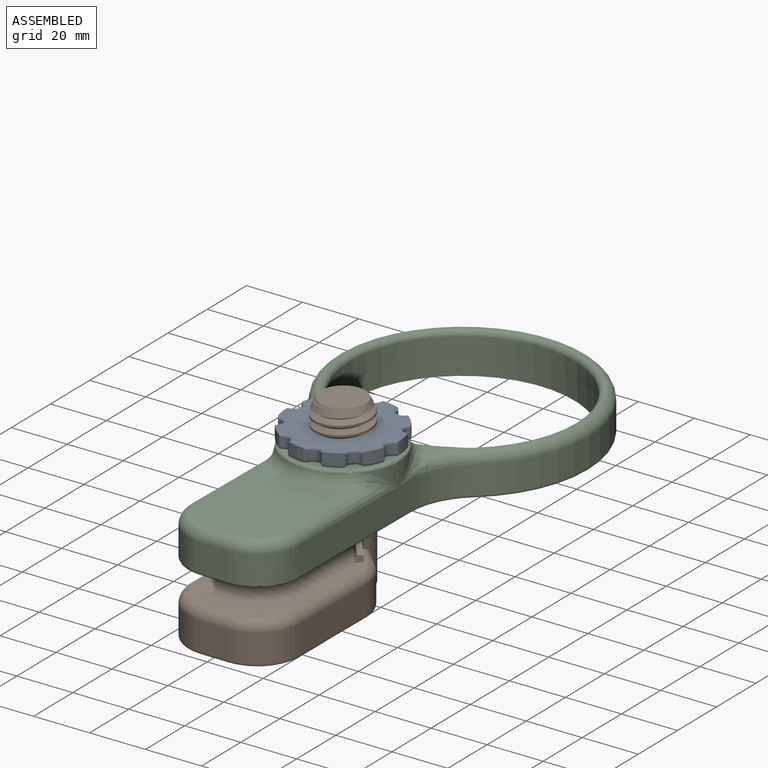
[diagram: assembled view]
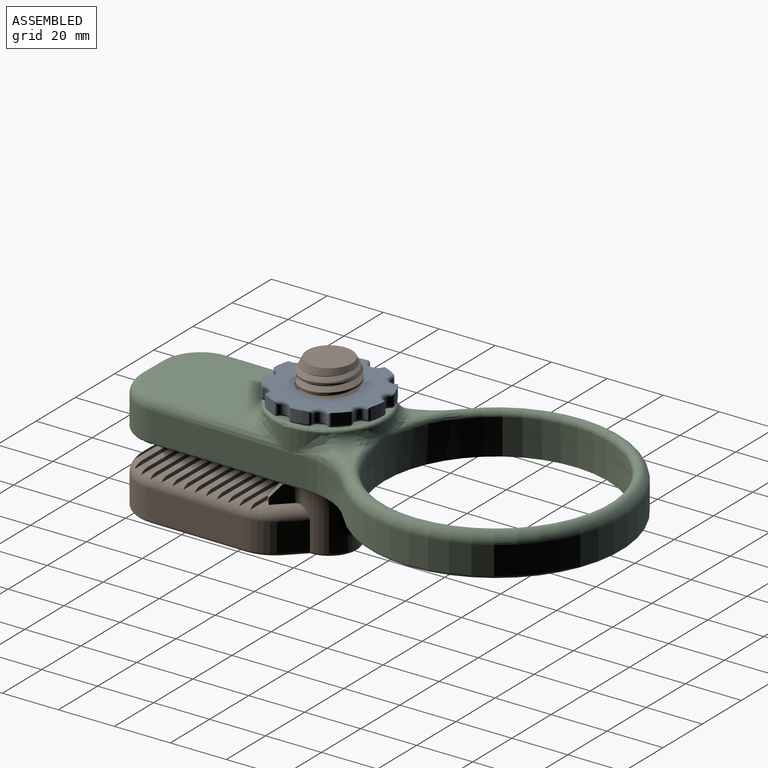
[diagram: assembled view, second angle]
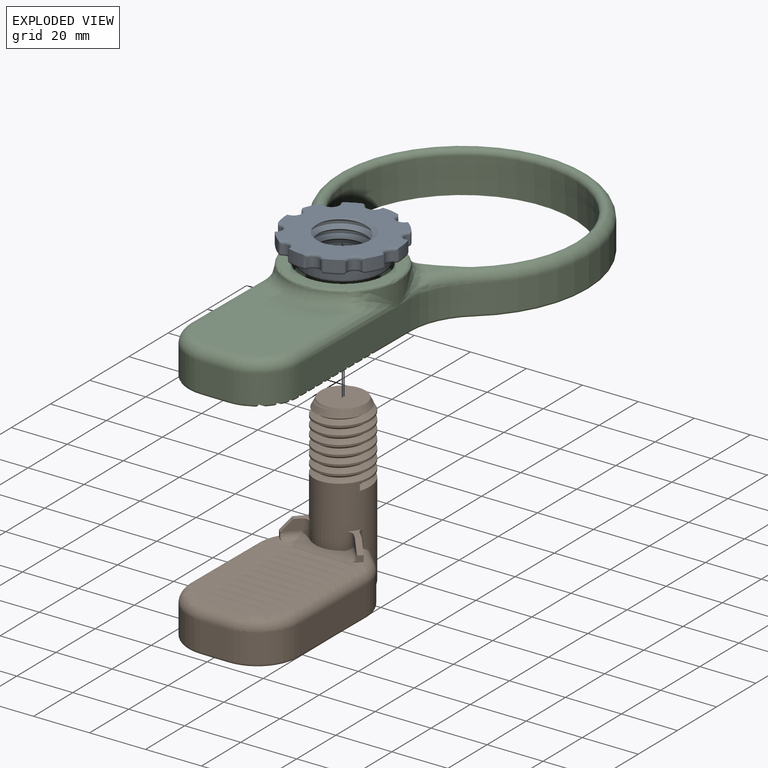
[diagram: exploded view]
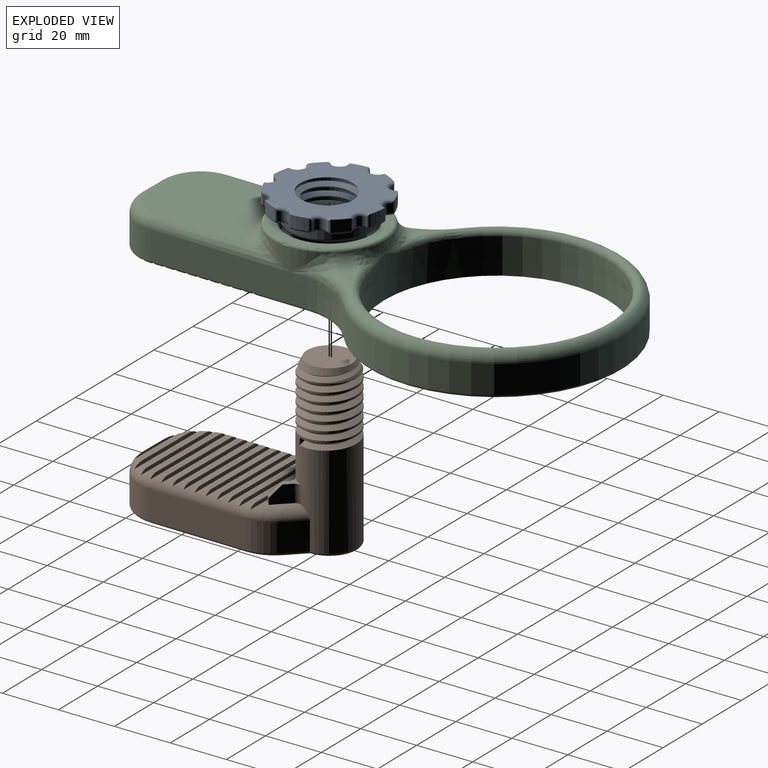
[diagram: exploded view, second angle]
ASSEMBLY  parts=3 mates=2
PART A: 99 faces, bbox 41.4x40.9x13.6 mm
  f0: bspline ~23.67x20.5mm, area 369.5mm2, adj f1,f3,f6,f27
  f1: bspline ~23.67x20.5mm, area 348.6mm2, adj f0,f2,f3,f6
  f2: plane 1.6x1.1mm, normal (0,1,0), area 0.9mm2, adj f1,f3,f27
  f3: cylinder r=10.25mm len=20.5mm, axis (0,0,-1), area 201.4mm2, adj f0,f1,f2,f6,f27
  f4: cylinder r=20mm len=4.76mm, axis (0,0,-1), area 23.6mm2, adj f6,f8,f88,f90,f97,f98
  f5: cylinder r=20mm len=5.58mm, axis (0,0,-1), area 23.6mm2, adj f6,f7,f34,f35,f95,f97
  f6: plane 40.98x40.39mm, normal (0,0,-1), area 792.8mm2, adj f0,f1,f3,f4,f5,f9,f11,f13
  f7: torus R=19mm, axis (0,0,1), area 9.1mm2, adj f5,f25,f33,f93
  f8: torus R=19mm, axis (0,0,1), area 9.1mm2, adj f4,f25,f86,f96
  f9: cylinder r=20mm len=5.87mm, axis (0,0,-1), area 23.6mm2, adj f6,f10,f81,f83,f90,f91
  f10: torus R=19mm, axis (0,0,1), area 9.1mm2, adj f9,f25,f79,f89
  f11: cylinder r=20mm len=4.74mm, axis (0,0,-1), area 23.6mm2, adj f6,f12,f74,f76,f83,f84
  f12: torus R=19mm, axis (0,0,1), area 9.1mm2, adj f11,f25,f72,f82
  f13: cylinder r=20mm len=5.59mm, axis (0,0,-1), area 23.6mm2, adj f6,f14,f67,f69,f76,f77
  f14: torus R=19mm, axis (0,0,1), area 9.1mm2, adj f13,f25,f65,f75
  f15: cylinder r=20mm len=5.58mm, axis (0,0,-1), area 23.6mm2, adj f6,f16,f60,f62,f69,f70
  f16: torus R=19mm, axis (0,0,1), area 9.1mm2, adj f15,f25,f58,f68
  f17: cylinder r=20mm len=4.76mm, axis (0,0,-1), area 23.6mm2, adj f6,f18,f53,f55,f62,f63
  f18: torus R=19mm, axis (0,0,1), area 9.1mm2, adj f17,f25,f51,f61
  f19: cylinder r=20mm len=5.87mm, axis (0,0,-1), area 23.6mm2, adj f6,f20,f46,f48,f55,f56
  f20: torus R=19mm, axis (0,0,1), area 9.1mm2, adj f19,f25,f44,f54
  f21: cylinder r=20mm len=4.74mm, axis (0,0,-1), area 23.6mm2, adj f6,f22,f39,f41,f48,f49
  f22: torus R=19mm, axis (0,0,1), area 9.1mm2, adj f21,f25,f37,f47
  f23: cylinder r=20mm len=5.59mm, axis (0,0,-1), area 23.6mm2, adj f6,f24,f32,f34,f41,f42
  f24: torus R=19mm, axis (0,0,1), area 9.1mm2, adj f23,f25,f30,f40
  f25: plane 38x37.49mm, normal (0,0,1), area 372.4mm2, adj f7,f8,f10,f12,f14,f16,f18,f20
  f26: cylinder r=14.5mm len=29mm, axis (0,0,-1), area 364.4mm2, adj f25,f28
  f27: plane 27.95x27.95mm, normal (0,0,1), area 259.7mm2, adj f0,f2,f3,f28
  f28: torus R=13.5mm, axis (0,0,1), area 139.5mm2, adj f26,f27
  f29: cylinder r=2.5mm len=4.51mm, axis (0,0,-1), area 16.9mm2, adj f31,f32,f34,f35
  f30: sphere r=1mm, area 1.9mm2, adj f24,f31,f32
  f31: torus R=3.5mm, axis (0,0,1), area 10.1mm2, adj f25,f29,f30,f33
  f32: cylinder r=1mm len=3.99mm, axis (0,0,-1), area 4.5mm2, adj f23,f29,f30,f34
  f33: sphere r=1mm, area 0.8mm2, adj f7,f31,f35
  f34: torus R=3.5mm, axis (0,0,1), area 12mm2, adj f5,f6,f23,f29,f32,f35
  f35: cylinder r=1mm len=3.99mm, axis (0,0,1), area 4.5mm2, adj f5,f29,f33,f34
  f36: cylinder r=2.5mm len=3.7mm, axis (0,0,-1), area 16.9mm2, adj f38,f39,f41,f42
  f37: sphere r=1mm, area 0.8mm2, adj f22,f38,f39
  f38: torus R=3.5mm, axis (0,0,1), area 10.1mm2, adj f25,f36,f37,f40
  f39: cylinder r=1mm len=3.99mm, axis (0,0,-1), area 4.5mm2, adj f21,f36,f37,f41
  f40: sphere r=1mm, area 0.8mm2, adj f24,f38,f42
  f41: torus R=3.5mm, axis (0,0,1), area 12mm2, adj f6,f21,f23,f36,f39,f42
  f42: cylinder r=1mm len=3.99mm, axis (0,0,1), area 4.5mm2, adj f23,f36,f40,f41
  f43: cylinder r=2.5mm len=4.29mm, axis (0,0,-1), area 16.9mm2, adj f45,f46,f48,f49
  f44: sphere r=1mm, area 0.8mm2, adj f20,f45,f46
  f45: torus R=3.5mm, axis (0,0,1), area 10.1mm2, adj f25,f43,f44,f47
  f46: cylinder r=1mm len=3.99mm, axis (0,0,-1), area 4.5mm2, adj f19,f43,f44,f48
  f47: sphere r=1mm, area 1.9mm2, adj f22,f45,f49
  f48: torus R=3.5mm, axis (0,0,1), area 12mm2, adj f6,f19,f21,f43,f46,f49
  f49: cylinder r=1mm len=3.99mm, axis (0,0,1), area 4.5mm2, adj f21,f43,f47,f48
  f50: cylinder r=2.5mm len=4.29mm, axis (0,0,-1), area 16.9mm2, adj f52,f53,f55,f56
  f51: sphere r=1mm, area 0.8mm2, adj f18,f52,f53
  f52: torus R=3.5mm, axis (0,0,1), area 10.1mm2, adj f25,f50,f51,f54
  f53: cylinder r=1mm len=3.99mm, axis (0,0,-1), area 4.5mm2, adj f17,f50,f51,f55
  f54: sphere r=1mm, area 1.9mm2, adj f20,f52,f56
  f55: torus R=3.5mm, axis (0,0,1), area 12mm2, adj f6,f17,f19,f50,f53,f56
  f56: cylinder r=1mm len=3.99mm, axis (0,0,1), area 4.5mm2, adj f19,f50,f54,f55
  f57: cylinder r=2.5mm len=3.68mm, axis (0,0,-1), area 16.9mm2, adj f59,f60,f62,f63
  f58: sphere r=1mm, area 1.9mm2, adj f16,f59,f60
  f59: torus R=3.5mm, axis (0,0,1), area 10.1mm2, adj f25,f57,f58,f61
  f60: cylinder r=1mm len=3.99mm, axis (0,0,-1), area 4.5mm2, adj f15,f57,f58,f62
  f61: sphere r=1mm, area 1.9mm2, adj f18,f59,f63
  f62: torus R=3.5mm, axis (0,0,1), area 12mm2, adj f6,f15,f17,f57,f60,f63
  f63: cylinder r=1mm len=3.99mm, axis (0,0,1), area 4.5mm2, adj f17,f57,f61,f62
  f64: cylinder r=2.5mm len=4.51mm, axis (0,0,-1), area 16.9mm2, adj f66,f67,f69,f70
  f65: sphere r=1mm, area 0.8mm2, adj f14,f66,f67
  f66: torus R=3.5mm, axis (0,0,1), area 10.1mm2, adj f25,f64,f65,f68
  f67: cylinder r=1mm len=3.99mm, axis (0,0,-1), area 4.5mm2, adj f13,f64,f65,f69
  f68: sphere r=1mm, area 0.8mm2, adj f16,f66,f70
  f69: torus R=3.5mm, axis (0,0,1), area 12mm2, adj f6,f13,f15,f64,f67,f70
  f70: cylinder r=1mm len=3.99mm, axis (0,0,1), area 4.5mm2, adj f15,f64,f68,f69
  f71: cylinder r=2.5mm len=3.7mm, axis (0,0,-1), area 16.9mm2, adj f73,f74,f76,f77
  f72: sphere r=1mm, area 0.8mm2, adj f12,f73,f74
  f73: torus R=3.5mm, axis (0,0,1), area 10.1mm2, adj f25,f71,f72,f75
  f74: cylinder r=1mm len=3.99mm, axis (0,0,-1), area 4.5mm2, adj f11,f71,f72,f76
  f75: sphere r=1mm, area 1.9mm2, adj f14,f73,f77
  f76: torus R=3.5mm, axis (0,0,1), area 12mm2, adj f6,f11,f13,f71,f74,f77
  f77: cylinder r=1mm len=3.99mm, axis (0,0,1), area 4.5mm2, adj f13,f71,f75,f76
  f78: cylinder r=2.5mm len=4.29mm, axis (0,0,-1), area 16.9mm2, adj f80,f81,f83,f84
  f79: sphere r=1mm, area 0.8mm2, adj f10,f80,f81
  f80: torus R=3.5mm, axis (0,0,1), area 10.1mm2, adj f25,f78,f79,f82
  f81: cylinder r=1mm len=3.99mm, axis (0,0,-1), area 4.5mm2, adj f9,f78,f79,f83
  f82: sphere r=1mm, area 1.9mm2, adj f12,f80,f84
  f83: torus R=3.5mm, axis (0,0,1), area 12mm2, adj f6,f9,f11,f78,f81,f84
  f84: cylinder r=1mm len=3.99mm, axis (0,0,1), area 4.5mm2, adj f11,f78,f82,f83
  f85: cylinder r=2.5mm len=4.29mm, axis (0,0,-1), area 16.9mm2, adj f87,f88,f90,f91
  f86: sphere r=1mm, area 0.8mm2, adj f8,f87,f88
  f87: torus R=3.5mm, axis (0,0,1), area 10.1mm2, adj f25,f85,f86,f89
  f88: cylinder r=1mm len=3.99mm, axis (0,0,-1), area 4.5mm2, adj f4,f85,f86,f90
  f89: sphere r=1mm, area 1.9mm2, adj f10,f87,f91
  f90: torus R=3.5mm, axis (0,0,1), area 12mm2, adj f4,f6,f9,f85,f88,f91
  f91: cylinder r=1mm len=3.99mm, axis (0,0,1), area 4.5mm2, adj f9,f85,f89,f90
  f92: cylinder r=2.5mm len=3.68mm, axis (0,0,-1), area 16.9mm2, adj f94,f95,f97,f98
  f93: sphere r=1mm, area 0.8mm2, adj f7,f94,f95
  f94: torus R=3.5mm, axis (0,0,1), area 10.1mm2, adj f25,f92,f93,f96
  f95: cylinder r=1mm len=3.99mm, axis (0,0,-1), area 4.5mm2, adj f5,f92,f93,f97
  f96: sphere r=1mm, area 1.9mm2, adj f8,f94,f98
  f97: torus R=3.5mm, axis (0,0,1), area 12mm2, adj f4,f5,f6,f92,f95,f98
  f98: cylinder r=1mm len=3.99mm, axis (0,0,1), area 4.5mm2, adj f4,f92,f96,f97
PART B: 101 faces, bbox 43.2x77.8x62 mm
  f0: plane 2.38x1.72mm, normal (0,0,1), area 2.1mm2, adj f25,f78,f84
  f1: plane 21.94x4.99mm, normal (0,0,1), area 68.4mm2, adj f2,f78,f95,f98
  f2: cylinder r=10mm len=37.7mm, axis (0,0,-1), area 1680.2mm2, adj f1,f3,f31,f32,f40,f41,f45,f82
  f3: cylinder r=10mm len=20mm, axis (0,0,-1), area 44.7mm2, adj f2,f4,f91,f92
  f4: cylinder r=10mm len=20mm, axis (0,0,-1), area 45.7mm2, adj f3,f5,f91,f92
  f5: cylinder r=10mm len=20mm, axis (0,0,-1), area 44.6mm2, adj f4,f6,f91,f92
  f6: cylinder r=10mm len=20mm, axis (0,0,-1), area 45mm2, adj f5,f7,f91,f92
  f7: cylinder r=10mm len=20mm, axis (0,0,-1), area 45.7mm2, adj f6,f8,f91,f92
  f8: cylinder r=10mm len=20mm, axis (0,0,-1), area 29.7mm2, adj f7,f89,f91,f92
  f9: plane 2.33x1.67mm, normal (0,0,1), area 2mm2, adj f11,f78,f79
  f10: plane 4.26x4.13mm, normal (0,0,1), area 0.5mm2, adj f25,f41,f85,f99
  f11: torus R=11mm, axis (0,0,1), area 62.1mm2, adj f9,f22,f23,f37,f40,f65,f78,f79
  f12: plane 29.6x2mm, normal (0,0,1), area 56.8mm2, adj f24,f27,f54,f67
  f13: plane 31.91x2mm, normal (0,0,1), area 63.2mm2, adj f24,f27,f53,f68
  f14: plane 32x2mm, normal (0,0,1), area 64mm2, adj f23,f26,f64,f69
  f15: plane 32x2mm, normal (0,0,1), area 64mm2, adj f23,f26,f63,f70
  f16: plane 32x2mm, normal (0,0,1), area 64mm2, adj f23,f26,f62,f71
  f17: plane 32x2mm, normal (0,0,1), area 64mm2, adj f23,f26,f61,f72
  f18: plane 32x2mm, normal (0,0,1), area 64mm2, adj f23,f26,f60,f73
  f19: plane 32x2mm, normal (0,0,1), area 64mm2, adj f23,f26,f59,f74
  f20: plane 32x2mm, normal (0,0,1), area 64mm2, adj f23,f26,f58,f75
  f21: plane 32x2mm, normal (0,0,1), area 64mm2, adj f23,f26,f57,f76
  f22: plane 32x2mm, normal (0,0,1), area 64mm2, adj f11,f23,f25,f26,f65,f77
  f23: cylinder r=4mm len=33.78mm, axis (0,1,0), area 175.6mm2, adj f11,f14,f15,f16,f17,f18,f19,f20
  f24: torus R=11mm, axis (0,0,1), area 106.2mm2, adj f12,f13,f23,f33,f36,f42,f53,f54
  f25: torus R=11mm, axis (0,0,1), area 63mm2, adj f0,f10,f22,f26,f39,f41,f65,f78
  f26: cylinder r=4mm len=33.94mm, axis (0,-1,0), area 176.6mm2, adj f14,f15,f16,f17,f18,f19,f20,f21
  f27: torus R=11mm, axis (0,0,1), area 106.1mm2, adj f12,f13,f26,f33,f38,f42,f53,f54
  f28: plane 33.78x10mm, normal (-1,0,0), area 337.8mm2, adj f23,f36,f37,f51
  f29: plane 10x10mm, normal (0,-1,0), area 100mm2, adj f36,f38,f42,f50
  f30: plane 33.94x10mm, normal (1,0,0), area 339.4mm2, adj f26,f38,f39,f46
  f31: plane 10x5.56mm, normal (0.7,0.71,0), area 78.2mm2, adj f2,f39,f41,f43
  f32: plane 10x5.61mm, normal (-0.71,0.71,0), area 79.3mm2, adj f2,f37,f40,f47
  f33: plane 22.65x2mm, normal (0,0,1), area 37.2mm2, adj f24,f27,f55,f66
  f34: plane 73x38mm, normal (0,0,-1), area 2359.7mm2, adj f43,f44,f45,f46,f47,f48,f49,f50
  f35: plane 16x16mm, normal (0,0,1), area 201.1mm2, adj f89
  f36: cylinder r=15mm len=15mm, axis (0,0,-1), area 235.6mm2, adj f24,f28,f29,f52
  f37: cylinder r=15mm len=10.6mm, axis (0,0,1), area 117.8mm2, adj f11,f28,f32,f49
  f38: cylinder r=15mm len=15mm, axis (0,0,1), area 235.6mm2, adj f27,f29,f30,f48
  f39: cylinder r=15mm len=10.66mm, axis (0,0,1), area 118.5mm2, adj f25,f30,f31,f44
  f40: cylinder r=4mm len=8.44mm, axis (0.71,0.71,0), area 41mm2, adj f2,f11,f32,f81,f100
  f41: cylinder r=4mm len=8.37mm, axis (0.71,-0.7,0), area 40.7mm2, adj f2,f10,f25,f31,f99
  f42: cylinder r=4mm len=10mm, axis (-1,0,0), area 41.9mm2, adj f24,f27,f29,f56
  f43: cylinder r=1mm len=6.56mm, axis (-0.71,0.7,0), area 12.6mm2, adj f31,f34,f44,f45
  f44: torus R=14mm, axis (0,0,1), area 18.2mm2, adj f34,f39,f43,f46
  f45: torus R=9mm, axis (0,0,1), area 48.1mm2, adj f2,f34,f43,f47
  f46: cylinder r=1mm len=33.94mm, axis (0,1,0), area 53.3mm2, adj f30,f34,f44,f48
  f47: cylinder r=1mm len=6.62mm, axis (-0.71,-0.71,0), area 12.8mm2, adj f32,f34,f45,f49
  f48: torus R=14mm, axis (0,0,1), area 36.1mm2, adj f34,f38,f46,f50
  f49: torus R=14mm, axis (0,0,1), area 18.1mm2, adj f34,f37,f47,f51
  f50: cylinder r=1mm len=10mm, axis (1,0,0), area 15.7mm2, adj f29,f34,f48,f52
  f51: cylinder r=1mm len=33.78mm, axis (0,-1,0), area 53.1mm2, adj f28,f34,f49,f52
  f52: torus R=14mm, axis (0,0,1), area 36.1mm2, adj f34,f36,f50,f51
  f53: plane 37.95x1.39mm, normal (0,1,0), area 48.1mm2, adj f13,f24,f27,f69
  f54: plane 36.4x1.62mm, normal (0,1,0), area 45.5mm2, adj f12,f24,f27,f68
  f55: plane 32.08x2.01mm, normal (0,1,0), area 38.5mm2, adj f24,f27,f33,f67
  f56: plane 21x1.51mm, normal (0,1,0), area 13.8mm2, adj f24,f27,f42,f66
  f57: plane 37.96x1.33mm, normal (0,1,0), area 48.2mm2, adj f21,f23,f26,f77
  f58: plane 37.96x1.33mm, normal (0,1,0), area 48.2mm2, adj f20,f23,f26,f76
  f59: plane 37.96x1.33mm, normal (0,1,0), area 48.2mm2, adj f19,f23,f26,f75
  f60: plane 37.96x1.33mm, normal (0,1,0), area 48.2mm2, adj f18,f23,f26,f74
  f61: plane 37.96x1.33mm, normal (0,1,0), area 48.2mm2, adj f17,f23,f26,f73
  f62: plane 37.96x1.33mm, normal (0,1,0), area 48.2mm2, adj f16,f23,f26,f72
  f63: plane 37.96x1.33mm, normal (0,1,0), area 48.2mm2, adj f15,f23,f26,f71
  f64: plane 37.96x1.33mm, normal (0,1,0), area 48.2mm2, adj f14,f23,f26,f70
  f65: plane 37.94x1.4mm, normal (0,1,0), area 48mm2, adj f11,f22,f25,f78
  f66: plane 21.09x2mm, normal (0,-0.55,0.83), area 48.8mm2, adj f24,f27,f33,f56
  f67: plane 31.41x2mm, normal (0,-0.55,0.83), area 73.7mm2, adj f12,f24,f27,f55
  f68: plane 36.11x2mm, normal (0,-0.55,0.83), area 83.8mm2, adj f13,f24,f27,f54
  f69: plane 38.38x2.49mm, normal (0,-0.55,0.83), area 86.8mm2, adj f14,f23,f24,f26,f27,f53
  f70: plane 37.96x2mm, normal (0,-0.55,0.83), area 86.8mm2, adj f15,f23,f26,f64
  f71: plane 37.96x2mm, normal (0,-0.55,0.83), area 86.8mm2, adj f16,f23,f26,f63
  f72: plane 37.96x2mm, normal (0,-0.55,0.83), area 86.8mm2, adj f17,f23,f26,f62
  f73: plane 37.96x2mm, normal (0,-0.55,0.83), area 86.8mm2, adj f18,f23,f26,f61
  f74: plane 37.96x2mm, normal (0,-0.55,0.83), area 86.8mm2, adj f19,f23,f26,f60
  f75: plane 37.96x2mm, normal (0,-0.55,0.83), area 86.8mm2, adj f20,f23,f26,f59
  f76: plane 37.96x2mm, normal (0,-0.55,0.83), area 86.8mm2, adj f21,f23,f26,f58
  f77: plane 37.96x2mm, normal (0,-0.55,0.83), area 86.8mm2, adj f22,f23,f26,f57
  f78: plane 38.44x2.57mm, normal (0,-0.55,0.83), area 85.9mm2, adj f0,f1,f9,f11,f25,f65,f94,f97
  f79: plane 3.05x2.84mm, normal (-0.71,-0.71,0), area 5.2mm2, adj f9,f11,f80,f81,f88,f97
  f80: plane 4.32x4.31mm, normal (0.71,-0.71,0), area 15mm2, adj f79,f82,f88,f96,f97,f98
  f81: plane 6.57x5.46mm, normal (-0.71,0.71,0), area 37.8mm2, adj f11,f40,f79,f82,f88,f100
  f82: plane 6.33x6.22mm, normal (0,0,1), area 11.2mm2, adj f2,f80,f81,f88,f96,f100
  f83: plane 4.31x4.31mm, normal (-0.71,-0.71,0), area 15mm2, adj f84,f86,f87,f93,f94,f95
  f84: plane 2.98x2.78mm, normal (0.71,-0.71,0), area 5.2mm2, adj f0,f25,f83,f85,f87,f94
  f85: plane 6.38x5.28mm, normal (0.71,0.71,0), area 37.8mm2, adj f10,f25,f84,f86,f87,f99
  f86: plane 6.33x6.22mm, normal (0,0,1), area 11.2mm2, adj f2,f83,f85,f87,f93,f99
  f87: plane 4.24x4.24mm, normal (0.5,-0.5,0.71), area 11.3mm2, adj f83,f84,f85,f86
  f88: plane 4.24x4.24mm, normal (-0.5,-0.5,0.71), area 11.3mm2, adj f79,f80,f81,f82
  f89: cone r=8mm half-angle=26.6deg, axis (0,0,-1), area 161.6mm2, adj f8,f35,f91,f92
  f90: plane 2.4x1.63mm, normal (0.42,0.91,0), area 2.2mm2, adj f2,f91,f92
  f91: bspline ~25.8x20mm, area 925.3mm2, adj f2,f3,f4,f5,f6,f7,f8,f89
  f92: bspline ~26.2x23.01mm, area 872.1mm2, adj f2,f3,f4,f5,f6,f7,f8,f89
  f93: cylinder r=2.5mm len=6.23mm, axis (0,0,-1), area 18.2mm2, adj f2,f83,f86,f95
  f94: bspline ~4.22x2.57mm, area 5.4mm2, adj f78,f83,f84,f95
  f95: cylinder r=2.5mm len=6.76mm, axis (-0.71,0.71,0), area 24.1mm2, adj f1,f2,f83,f93,f94
  f96: cylinder r=2.5mm len=6.23mm, axis (0,0,-1), area 18.2mm2, adj f2,f80,f82,f98
  f97: bspline ~4.71x2.96mm, area 5.5mm2, adj f78,f79,f80,f98
  f98: cylinder r=2.5mm len=6.76mm, axis (-0.71,-0.71,0), area 24.1mm2, adj f1,f2,f80,f96,f97
  f99: cylinder r=2.5mm len=6.47mm, axis (0,0,-1), area 17.6mm2, adj f2,f10,f41,f85,f86
  f100: cylinder r=2.5mm len=6.5mm, axis (0,0,-1), area 17.7mm2, adj f2,f40,f81,f82
PART C: 129 faces, bbox 98.3x175.8x20.8 mm
  f0: cylinder r=20mm len=22.56mm, axis (0,0,-1), area 90.4mm2, adj f61,f81,f110,f111,f121
  f1: cylinder r=20mm len=22.56mm, axis (0,0,-1), area 90.4mm2, adj f64,f81,f117,f122,f123
  f2: plane 116.03x88mm, normal (0,0,-1), area 1773.9mm2, adj f21,f31,f47,f77,f78,f79,f82,f97
  f3: plane 38x2mm, normal (0,0,-1), area 76mm2, adj f22,f32,f93,f98
  f4: plane 38x2mm, normal (0,0,-1), area 76mm2, adj f23,f33,f92,f99
  f5: plane 38x2mm, normal (0,0,-1), area 76mm2, adj f24,f34,f91,f100
  f6: plane 38x2mm, normal (0,0,-1), area 76mm2, adj f25,f35,f90,f101
  f7: plane 38x2mm, normal (0,0,-1), area 76mm2, adj f26,f36,f89,f102
  f8: plane 38x2mm, normal (0,0,-1), area 76mm2, adj f27,f37,f88,f103
  f9: plane 38x2mm, normal (0,0,-1), area 76mm2, adj f28,f38,f87,f104
  f10: plane 38x2mm, normal (0,0,-1), area 76mm2, adj f29,f39,f86,f105
  f11: plane 38x2mm, normal (0,0,-1), area 76mm2, adj f30,f40,f85,f106
  f12: plane 38x2mm, normal (0,0,-1), area 75.8mm2, adj f15,f18,f84,f107
  f13: plane 36.82x2mm, normal (0,0,-1), area 72.2mm2, adj f16,f19,f96,f108
  f14: plane 32.94x2mm, normal (0,0,-1), area 62.7mm2, adj f17,f20,f95,f109
  f15: torus R=14mm, axis (0,0,1), area 4.3mm2, adj f12,f56,f84,f107
  f16: torus R=14mm, axis (0,0,1), area 4.6mm2, adj f13,f56,f96,f108
  f17: torus R=14mm, axis (0,0,1), area 5.5mm2, adj f14,f56,f95,f109
  f18: torus R=14mm, axis (0,0,1), area 4.3mm2, adj f12,f55,f84,f107
  f19: torus R=14mm, axis (0,0,1), area 4.6mm2, adj f13,f55,f96,f108
  f20: torus R=14mm, axis (0,0,1), area 5.5mm2, adj f14,f55,f95,f109
  f21: cylinder r=1mm len=20.41mm, axis (0,1,0), area 30.5mm2, adj f2,f48,f77,f97
  f22: cylinder r=1mm len=4mm, axis (0,1,0), area 4.7mm2, adj f3,f48,f93,f98
  f23: cylinder r=1mm len=4mm, axis (0,1,0), area 4.7mm2, adj f4,f48,f92,f99
  f24: cylinder r=1mm len=4mm, axis (0,1,0), area 4.7mm2, adj f5,f48,f91,f100
  f25: cylinder r=1mm len=4mm, axis (0,1,0), area 4.7mm2, adj f6,f48,f90,f101
  f26: cylinder r=1mm len=4mm, axis (0,1,0), area 4.7mm2, adj f7,f48,f89,f102
  f27: cylinder r=1mm len=4mm, axis (0,1,0), area 4.7mm2, adj f8,f48,f88,f103
  f28: cylinder r=1mm len=4mm, axis (0,1,0), area 4.7mm2, adj f9,f48,f87,f104
  f29: cylinder r=1mm len=4mm, axis (0,1,0), area 4.7mm2, adj f10,f48,f86,f105
  f30: cylinder r=1mm len=3.99mm, axis (0,1,0), area 4.3mm2, adj f11,f48,f56,f85,f106
  f31: cylinder r=1mm len=20.41mm, axis (0,-1,0), area 30.5mm2, adj f2,f45,f78,f97
  f32: cylinder r=1mm len=4mm, axis (0,-1,0), area 4.7mm2, adj f3,f45,f93,f98
  f33: cylinder r=1mm len=4mm, axis (0,-1,0), area 4.7mm2, adj f4,f45,f92,f99
  f34: cylinder r=1mm len=4mm, axis (0,-1,0), area 4.7mm2, adj f5,f45,f91,f100
  f35: cylinder r=1mm len=4mm, axis (0,-1,0), area 4.7mm2, adj f6,f45,f90,f101
  f36: cylinder r=1mm len=4mm, axis (0,-1,0), area 4.7mm2, adj f7,f45,f89,f102
  f37: cylinder r=1mm len=4mm, axis (0,-1,0), area 4.7mm2, adj f8,f45,f88,f103
  f38: cylinder r=1mm len=4mm, axis (0,-1,0), area 4.7mm2, adj f9,f45,f87,f104
  f39: cylinder r=1mm len=4mm, axis (0,-1,0), area 4.7mm2, adj f10,f45,f86,f105
  f40: cylinder r=1mm len=3.99mm, axis (0,-1,0), area 4.3mm2, adj f11,f45,f55,f85,f106
  f41: plane 8.07x7.24mm, normal (0,0,1), area 17.4mm2, adj f63,f68,f113
  f42: plane 41.9x32mm, normal (0,0,1), area 1161.6mm2, adj f59,f60,f61,f62,f64,f119
  f43: plane 30x30mm, normal (0,0,1), area 254.5mm2, adj f53,f83
  f44: cylinder r=45mm len=90mm, axis (0,0,-1), area 2199mm2, adj f57,f58,f65,f79
  f45: plane 56.38x10mm, normal (-1,0,0), area 563.8mm2, adj f31,f32,f33,f34,f35,f36,f37,f38
  f46: plane 10x10mm, normal (0,-1,0), area 100mm2, adj f55,f56,f60,f74
  f47: cylinder r=40mm len=80mm, axis (0,0,-1), area 3227.3mm2, adj f2,f67,f68,f69,f70,f71,f72,f73
  f48: plane 56.38x10mm, normal (1,0,0), area 563.8mm2, adj f21,f22,f23,f24,f25,f26,f27,f28
  f49: cylinder r=11mm len=22mm, axis (0,0,-1), area 898.5mm2, adj f82,f83
  f50: plane 8.07x7.24mm, normal (0,0,1), area 17.4mm2, adj f66,f72,f125
  f51: plane 24.33x1.97mm, normal (0,0,-1), area 38.9mm2, adj f74,f75,f76,f94
  f52: cylinder r=20mm len=15.96mm, axis (0,0,-1), area 35.6mm2, adj f81,f115,f116,f127,f128
  f53: cylinder r=15mm len=30mm, axis (0,0,-1), area 377mm2, adj f43,f80
  f54: plane 38x38mm, normal (0,0,1), area 329.9mm2, adj f80,f81
  f55: cylinder r=15mm len=15mm, axis (0,0,-1), area 235.6mm2, adj f18,f19,f20,f40,f45,f46,f59,f76
  f56: cylinder r=15mm len=15mm, axis (0,0,-1), area 235.6mm2, adj f15,f16,f17,f30,f46,f48,f62,f75
  f57: cylinder r=25mm len=19.15mm, axis (0,0,-1), area 218.1mm2, adj f44,f45,f63,f78
  f58: cylinder r=25mm len=19.15mm, axis (0,0,-1), area 218.1mm2, adj f44,f48,f66,f77
  f59: torus R=11mm, axis (0,0,1), area 133.7mm2, adj f42,f55,f60,f61
  f60: cylinder r=4mm len=10mm, axis (-1,0,0), area 62.8mm2, adj f42,f46,f59,f62
  f61: cylinder r=4mm len=56.38mm, axis (0,1,0), area 253mm2, adj f0,f42,f45,f59,f63,f110,f120,f121
  f62: torus R=11mm, axis (0,0,1), area 133.7mm2, adj f42,f56,f60,f64
  f63: torus R=29mm, axis (0,0,1), area 111.2mm2, adj f41,f57,f61,f65,f69,f111,f112
  f64: cylinder r=4mm len=56.38mm, axis (0,-1,0), area 253mm2, adj f1,f42,f48,f62,f66,f117,f118,f122
  f65: torus R=41mm, axis (0,0,1), area 907mm2, adj f44,f63,f66,f70
  f66: torus R=29mm, axis (0,0,1), area 111.2mm2, adj f50,f58,f64,f65,f71,f123,f124
  f67: bspline ~7.46x2.11mm, area 3.9mm2, adj f47,f68,f116
  f68: torus R=42mm, axis (0,0,1), area 42mm2, adj f41,f47,f67,f69,f114,f115
  f69: bspline ~7.31x5.43mm, area 21.8mm2, adj f47,f63,f68,f70
  f70: torus R=42mm, axis (0,0,-1), area 842.8mm2, adj f47,f65,f69,f71
  f71: bspline ~8.09x6.04mm, area 21.8mm2, adj f47,f66,f70,f72
  f72: torus R=42mm, axis (0,0,1), area 42mm2, adj f47,f50,f71,f73,f126,f127
  f73: bspline ~7.46x2.11mm, area 3.9mm2, adj f47,f72,f128
  f74: cylinder r=1mm len=10mm, axis (1,0,0), area 15.7mm2, adj f46,f51,f75,f76
  f75: torus R=14mm, axis (0,0,1), area 13.6mm2, adj f51,f56,f74,f94
  f76: torus R=14mm, axis (0,0,1), area 13.6mm2, adj f51,f55,f74,f94
  f77: torus R=26mm, axis (0,0,1), area 34.8mm2, adj f2,f21,f58,f79
  f78: torus R=26mm, axis (0,0,1), area 34.8mm2, adj f2,f31,f57,f79
  f79: torus R=44mm, axis (0,0,1), area 342.6mm2, adj f2,f44,f77,f78
  f80: torus R=16mm, axis (0,0,1), area 151.6mm2, adj f53,f54
  f81: torus R=19mm, axis (0,0,1), area 185.7mm2, adj f0,f1,f52,f54,f112,f113,f114,f118
  f82: torus R=12mm, axis (0,0,1), area 112.2mm2, adj f2,f49
  f83: torus R=12mm, axis (0,0,1), area 112.2mm2, adj f43,f49
  f84: plane 40x1mm, normal (0,1,0), area 39.6mm2, adj f12,f15,f18,f106
  f85: plane 40x1mm, normal (0,1,0), area 39.6mm2, adj f11,f30,f40,f105
  f86: plane 40x1mm, normal (0,1,0), area 39.6mm2, adj f10,f29,f39,f104
  f87: plane 40x1mm, normal (0,1,0), area 39.6mm2, adj f9,f28,f38,f103
  f88: plane 40x1mm, normal (0,1,0), area 39.6mm2, adj f8,f27,f37,f102
  f89: plane 40x1mm, normal (0,1,0), area 39.6mm2, adj f7,f26,f36,f101
  f90: plane 40x1mm, normal (0,1,0), area 39.6mm2, adj f6,f25,f35,f100
  f91: plane 40x1mm, normal (0,1,0), area 39.6mm2, adj f5,f24,f34,f99
  f92: plane 40x1mm, normal (0,1,0), area 39.6mm2, adj f4,f23,f33,f98
  f93: plane 40x1mm, normal (0,1,0), area 39.6mm2, adj f3,f22,f32,f97
  f94: plane 28.45x1.53mm, normal (0,1,0), area 27.2mm2, adj f51,f75,f76,f109
  f95: plane 35.63x1.28mm, normal (0,1,0), area 34.8mm2, adj f14,f17,f20,f108
  f96: plane 39.03x1.13mm, normal (0,1,0), area 38.5mm2, adj f13,f16,f19,f107
  f97: plane 40.84x2.84mm, normal (0,-0.45,-0.89), area 88.5mm2, adj f2,f21,f31,f93
  f98: plane 40.84x2.84mm, normal (0,-0.45,-0.89), area 88.5mm2, adj f3,f22,f32,f92
  f99: plane 40.84x2.84mm, normal (0,-0.45,-0.89), area 88.5mm2, adj f4,f23,f33,f91
  f100: plane 40.84x2.84mm, normal (0,-0.45,-0.89), area 88.5mm2, adj f5,f24,f34,f90
  f101: plane 40.84x2.84mm, normal (0,-0.45,-0.89), area 88.5mm2, adj f6,f25,f35,f89
  f102: plane 40.84x2.84mm, normal (0,-0.45,-0.89), area 88.5mm2, adj f7,f26,f36,f88
  f103: plane 40.84x2.84mm, normal (0,-0.45,-0.89), area 88.5mm2, adj f8,f27,f37,f87
  f104: plane 40.84x2.84mm, normal (0,-0.45,-0.89), area 88.5mm2, adj f9,f28,f38,f86
  f105: plane 40.84x2.84mm, normal (0,-0.45,-0.89), area 88.5mm2, adj f10,f29,f39,f85
  f106: plane 40x2mm, normal (0,-0.45,-0.89), area 88.5mm2, adj f11,f30,f40,f55,f56,f84
  f107: plane 39.13x2mm, normal (0,-0.45,-0.89), area 87mm2, adj f12,f15,f18,f96
  f108: plane 36.28x2mm, normal (0,-0.45,-0.89), area 80.5mm2, adj f13,f16,f19,f95
  f109: plane 30.44x2mm, normal (0,-0.45,-0.89), area 66.3mm2, adj f14,f17,f20,f94
  f110: bspline ~6.96x4.1mm, area 7.9mm2, adj f0,f61,f111
  f111: bspline ~9.6x6.64mm, area 31.6mm2, adj f0,f63,f110,f112
  f112: bspline ~8.55x5.73mm, area 20.9mm2, adj f63,f81,f111,f113
  f113: torus R=24.92mm, axis (0,0,1), area 31.6mm2, adj f41,f81,f112,f114
  f114: bspline ~6.9x4.51mm, area 20.3mm2, adj f68,f81,f113,f115
  f115: bspline ~8.83x5.65mm, area 16mm2, adj f52,f68,f114,f116
  f116: bspline ~6.99x2.98mm, area 10.1mm2, adj f52,f67,f115
  f117: bspline ~14.56x7.91mm, area 43.2mm2, adj f1,f64,f118
  f118: bspline ~10.2x7.25mm, area 27.4mm2, adj f64,f81,f117,f119
  f119: torus R=24.92mm, axis (0,0,1), area 214.8mm2, adj f42,f81,f118,f120
  f120: bspline ~8.53x5.51mm, area 27.4mm2, adj f61,f81,f119,f121
  f121: bspline ~16.29x8.5mm, area 43.2mm2, adj f0,f61,f120
  f122: bspline ~6.96x4.1mm, area 7.9mm2, adj f1,f64,f123
  f123: bspline ~9.91x6.73mm, area 31.6mm2, adj f1,f66,f122,f124
  f124: bspline ~8.55x5.73mm, area 20.9mm2, adj f66,f81,f123,f125
  f125: torus R=24.92mm, axis (0,0,1), area 31.6mm2, adj f50,f81,f124,f126
  f126: bspline ~8.68x5.05mm, area 20.3mm2, adj f72,f81,f125,f127
  f127: bspline ~8.73x5.62mm, area 16mm2, adj f52,f72,f126,f128
  f128: bspline ~7.15x3.01mm, area 7.1mm2, adj f52,f73,f127
PLACE A rot(axis=(-0.76,-0.65,0),180deg) t=(-77.58,-88.32,13.3)mm
PLACE B rot(axis=(0,0,-1),0.6deg) t=(-94.89,-1.82,-37.86)mm
PLACE C rot(axis=(0,0,-1),0.6deg) t=(-14.89,-2.69,-12.41)mm
MATE cylindrical A.f3 <-> B.f2  axis (0,0,1) through (-15.06,-17.69,13.3)mm
MATE slider C.f0 <-> B.f2  axis (0,0,1) through (-15.06,-17.69,2.59)mm
